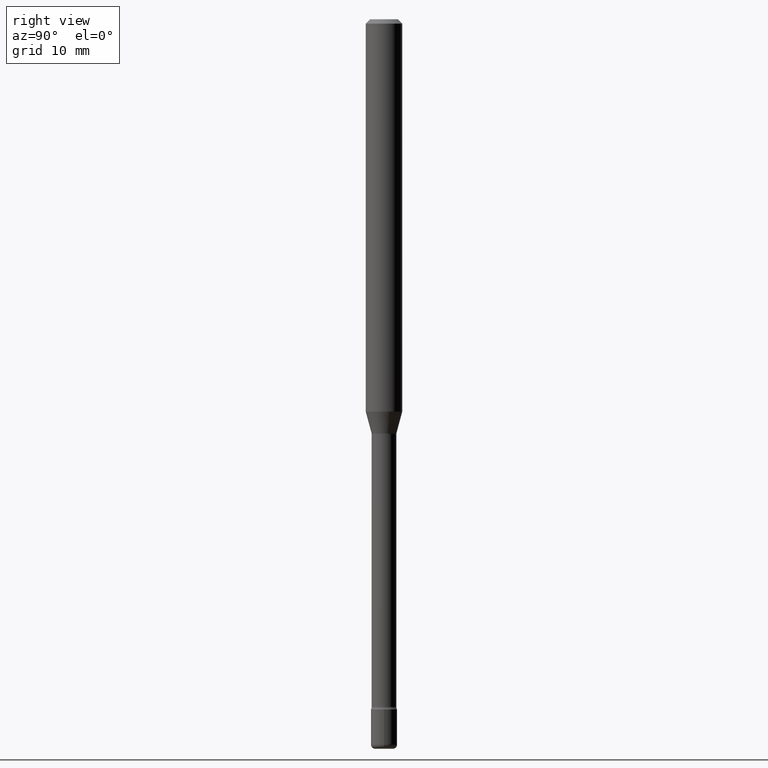
[diagram: clean part render]
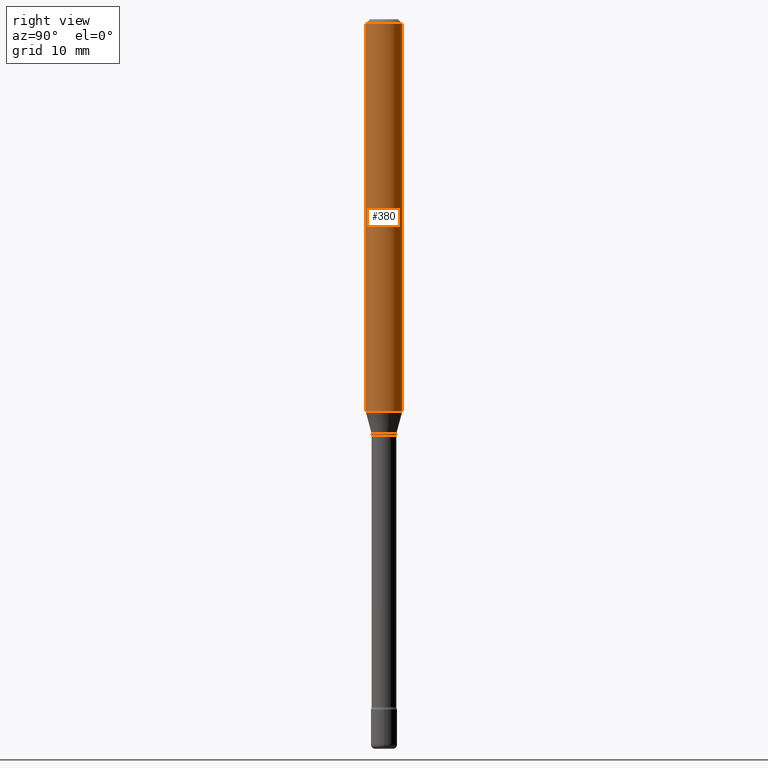
[diagram: same view with one face highlighted and labeled with its STEP entity id]
A machine part, right view. The second image highlights one B-rep face of the part: STEP entity #380.
In plain terms, the highlighted cylindrical surface (edge-blend (fillet) strip) has radius 1.5875 mm, axis along (-0, 0, 1).
Its self-contained STEP definition (entity closure, byte-faithful):
#20 = DIRECTION ( 'NONE',  ( -2.445411864812793917E-29, 3.491562882129241838E-15, 1.000000000000000000 ) ) ;
#31 = CARTESIAN_POINT ( 'NONE',  ( 4.440892098500956497E-16, 0.06249999999999993755, -0.01500000000000024578 ) ) ;
#34 = CARTESIAN_POINT ( 'NONE',  ( -1.169113584055446105E-44, 1.669184350826100908E-30, 4.780733988912460139E-16 ) ) ;
#43 = FACE_OUTER_BOUND ( 'NONE', #314, .T. ) ;
#48 = DIRECTION ( 'NONE',  ( -2.445411864812793917E-29, 3.491562882129241838E-15, 1.000000000000000000 ) ) ;
#54 = ORIENTED_EDGE ( 'NONE', *, *, #572, .F. ) ;
#82 = LINE ( 'NONE', #259, #228 ) ;
#92 = VERTEX_POINT ( 'NONE', #372 ) ;
#98 = CARTESIAN_POINT ( 'NONE',  ( -4.364351673553912750E-16, -0.06250000000000005551, -0.01499999999999981036 ) ) ;
#101 = CARTESIAN_POINT ( 'NONE',  ( 3.668117797219197392E-31, -5.237344323193873357E-17, -0.01500000000000002720 ) ) ;
#134 = AXIS2_PLACEMENT_3D ( 'NONE', #101, #282, #453 ) ;
#142 = CIRCLE ( 'NONE', #435, 0.06250000000000000000 ) ;
#157 = CARTESIAN_POINT ( 'NONE',  ( -4.364351673553916201E-16, -0.06250000000000000000, 6.962960790243237274E-16 ) ) ;
#165 = VERTEX_POINT ( 'NONE', #31 ) ;
#173 = ORIENTED_EDGE ( 'NONE', *, *, #271, .T. ) ;
#197 = EDGE_CURVE ( 'NONE', #457, #398, #415, .T. ) ;
#199 = ORIENTED_EDGE ( 'NONE', *, *, #197, .F. ) ;
#213 = DIRECTION ( 'NONE',  ( -6.982962677686265922E-15, -1.000000000000000000, 3.491562882129242627E-15 ) ) ;
#216 = ORIENTED_EDGE ( 'NONE', *, *, #447, .T. ) ;
#225 = CYLINDRICAL_SURFACE ( 'NONE', #463, 0.06250000000000000000 ) ;
#228 = VECTOR ( 'NONE', #530, 39.37007874015748143 ) ;
#259 = CARTESIAN_POINT ( 'NONE',  ( 4.440892098500625669E-16, 0.06250000000000000000, 2.598507187581684484E-16 ) ) ;
#271 = EDGE_CURVE ( 'NONE', #92, #165, #82, .T. ) ;
#282 = DIRECTION ( 'NONE',  ( -2.445411864812793917E-29, 3.491562882129241838E-15, 1.000000000000000000 ) ) ;
#314 = EDGE_LOOP ( 'NONE', ( #216, #173, #54, #199 ) ) ;
#372 = CARTESIAN_POINT ( 'NONE',  ( 4.440892098500956497E-16, 0.06249999999999533706, -1.344612573687109514 ) ) ;
#378 = DIRECTION ( 'NONE',  ( -6.982962677686265922E-15, -1.000000000000000000, 4.370956789862821150E-15 ) ) ;
#380 = ADVANCED_FACE ( 'NONE', ( #43 ), #225, .T. ) ;
#398 = VERTEX_POINT ( 'NONE', #98 ) ;
#405 = CARTESIAN_POINT ( 'NONE',  ( -4.364351673553584879E-16, -0.06250000000000466294, -1.344612573687108847 ) ) ;
#415 = LINE ( 'NONE', #157, #557 ) ;
#435 = AXIS2_PLACEMENT_3D ( 'NONE', #497, #48, #378 ) ;
#447 = EDGE_CURVE ( 'NONE', #457, #92, #142, .T. ) ;
#453 = DIRECTION ( 'NONE',  ( -6.982962677686265922E-15, -1.000000000000000000, 3.483106191921935554E-15 ) ) ;
#457 = VERTEX_POINT ( 'NONE', #405 ) ;
#463 = AXIS2_PLACEMENT_3D ( 'NONE', #34, #479, #213 ) ;
#479 = DIRECTION ( 'NONE',  ( -2.445411864812793917E-29, 3.491562882129241838E-15, 1.000000000000000000 ) ) ;
#497 = CARTESIAN_POINT ( 'NONE',  ( 3.288131541270923736E-29, -4.694799353130180945E-15, -1.344612573687109069 ) ) ;
#530 = DIRECTION ( 'NONE',  ( -2.445411864812793917E-29, 3.491562882129241838E-15, 1.000000000000000000 ) ) ;
#550 = CIRCLE ( 'NONE', #134, 0.06250000000000000000 ) ;
#557 = VECTOR ( 'NONE', #20, 39.37007874015748143 ) ;
#572 = EDGE_CURVE ( 'NONE', #398, #165, #550, .T. ) ;